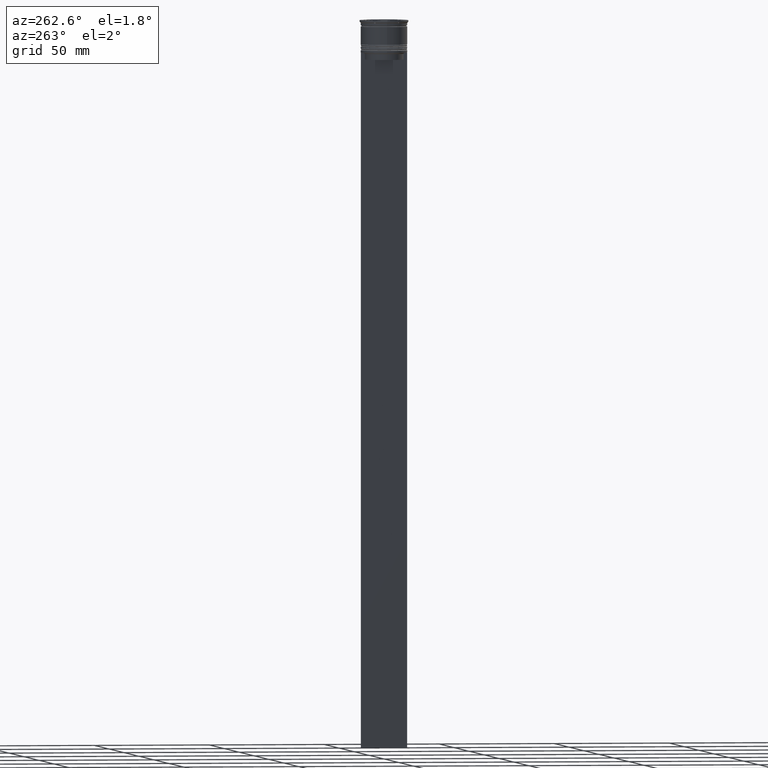
[diagram: clean part render]
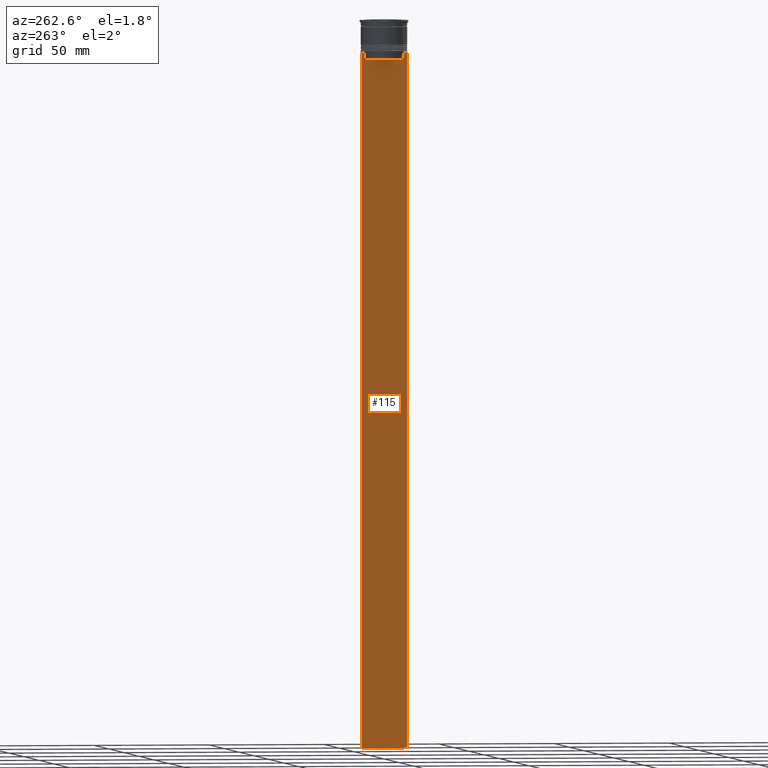
[diagram: same view with one face highlighted and labeled with its STEP entity id]
A machine part, auxiliary view. The second image highlights one B-rep face of the part: STEP entity #115.
In plain terms, the highlighted planar face has unit normal (-1, 0, 0).
Its self-contained STEP definition (entity closure, byte-faithful):
#62 = CARTESIAN_POINT ( 'NONE',  ( -0.5000000000000000000, 8.385105843100616241, 0.000000000000000000 ) ) ;
#115 = ADVANCED_FACE ( 'NONE', ( #799 ), #1029, .T. ) ;
#152 = CARTESIAN_POINT ( 'NONE',  ( -0.5000000000000000000, -8.385105843100616241, 0.000000000000000000 ) ) ;
#170 = VERTEX_POINT ( 'NONE', #833 ) ;
#177 = VECTOR ( 'NONE', #376, 1000.000000000000000 ) ;
#189 = CARTESIAN_POINT ( 'NONE',  ( -0.5000000000000000000, -10.00000000000000178, -14.00000000000000178 ) ) ;
#212 = ORIENTED_EDGE ( 'NONE', *, *, #2210, .F. ) ;
#268 = DIRECTION ( 'NONE',  ( 0.000000000000000000, 0.000000000000000000, -1.000000000000000000 ) ) ;
#284 = VERTEX_POINT ( 'NONE', #1469 ) ;
#327 = ORIENTED_EDGE ( 'NONE', *, *, #1141, .F. ) ;
#353 = LINE ( 'NONE', #152, #678 ) ;
#376 = DIRECTION ( 'NONE',  ( 0.000000000000000000, -1.000000000000000000, 0.000000000000000000 ) ) ;
#379 = LINE ( 'NONE', #2398, #2533 ) ;
#394 = VECTOR ( 'NONE', #1711, 1000.000000000000000 ) ;
#404 = CARTESIAN_POINT ( 'NONE',  ( -0.5000000000000000000, -8.385105843100616241, -14.50000000000000000 ) ) ;
#460 = VERTEX_POINT ( 'NONE', #1512 ) ;
#496 = CARTESIAN_POINT ( 'NONE',  ( -0.5000000000000000000, 9.999999999999998224, 6.024984394500783047 ) ) ;
#510 = CARTESIAN_POINT ( 'NONE',  ( -0.5000000000000000000, 8.385105843100616241, -14.50000000000000000 ) ) ;
#524 = ORIENTED_EDGE ( 'NONE', *, *, #1669, .F. ) ;
#553 = AXIS2_PLACEMENT_3D ( 'NONE', #1884, #2465, #2475 ) ;
#566 = VECTOR ( 'NONE', #268, 1000.000000000000000 ) ;
#576 = LINE ( 'NONE', #791, #1233 ) ;
#587 = VECTOR ( 'NONE', #1082, 1000.000000000000000 ) ;
#651 = DIRECTION ( 'NONE',  ( 0.000000000000000000, -1.000000000000000000, 0.000000000000000000 ) ) ;
#657 = EDGE_CURVE ( 'NONE', #460, #2553, #1820, .T. ) ;
#668 = CARTESIAN_POINT ( 'NONE',  ( -0.5000000000000000000, 8.385105843100616241, -14.50000000000000000 ) ) ;
#678 = VECTOR ( 'NONE', #2003, 1000.000000000000000 ) ;
#711 = CARTESIAN_POINT ( 'NONE',  ( -0.5000000000000000000, 8.885943956609230199, -14.00000000000000178 ) ) ;
#730 = EDGE_CURVE ( 'NONE', #893, #284, #1616, .T. ) ;
#753 = CARTESIAN_POINT ( 'NONE',  ( -0.5000000000000000000, -10.00000000000000178, -14.00000000000000178 ) ) ;
#791 = CARTESIAN_POINT ( 'NONE',  ( -0.5000000000000000000, -10.00000000000000178, -14.00000000000000178 ) ) ;
#799 = FACE_OUTER_BOUND ( 'NONE', #1351, .T. ) ;
#803 = CARTESIAN_POINT ( 'NONE',  ( -0.5000000000000000000, -8.552060194457769882, -14.33334167772667200 ) ) ;
#825 = EDGE_CURVE ( 'NONE', #2401, #1599, #865, .T. ) ;
#833 = CARTESIAN_POINT ( 'NONE',  ( -0.5000000000000000000, -8.385105843100616241, -17.00000000000000000 ) ) ;
#850 = ORIENTED_EDGE ( 'NONE', *, *, #1389, .F. ) ;
#865 = LINE ( 'NONE', #62, #587 ) ;
#879 = LINE ( 'NONE', #2564, #394 ) ;
#893 = VERTEX_POINT ( 'NONE', #2098 ) ;
#952 = VERTEX_POINT ( 'NONE', #1782 ) ;
#977 = VECTOR ( 'NONE', #1593, 1000.000000000000000 ) ;
#1029 = PLANE ( 'NONE',  #553 ) ;
#1040 = ORIENTED_EDGE ( 'NONE', *, *, #1704, .F. ) ;
#1048 = ORIENTED_EDGE ( 'NONE', *, *, #825, .F. ) ;
#1082 = DIRECTION ( 'NONE',  ( 0.000000000000000000, 0.000000000000000000, -1.000000000000000000 ) ) ;
#1118 = VECTOR ( 'NONE', #651, 1000.000000000000000 ) ;
#1141 = EDGE_CURVE ( 'NONE', #952, #2117, #379, .T. ) ;
#1183 = B_SPLINE_CURVE_WITH_KNOTS ( 'NONE', 3,
 ( #711, #2116, #1531, #510 ),
 .UNSPECIFIED., .F., .F.,
 ( 4, 4 ),
 ( 0.01511546479386908018, 0.01582316445439079997 ),
 .UNSPECIFIED. ) ;
#1204 = EDGE_CURVE ( 'NONE', #2553, #952, #2610, .T. ) ;
#1213 = ORIENTED_EDGE ( 'NONE', *, *, #1204, .F. ) ;
#1219 = CARTESIAN_POINT ( 'NONE',  ( -0.5000000000000000000, -8.719005764482790966, -14.16667454151159689 ) ) ;
#1230 = DIRECTION ( 'NONE',  ( 0.000000000000000000, -1.000000000000000000, 0.000000000000000000 ) ) ;
#1233 = VECTOR ( 'NONE', #1993, 1000.000000000000000 ) ;
#1301 = ORIENTED_EDGE ( 'NONE', *, *, #1943, .T. ) ;
#1351 = EDGE_LOOP ( 'NONE', ( #1969, #1360, #524, #1301, #1783, #327, #1213, #1488, #850, #1040, #212, #1048 ) ) ;
#1360 = ORIENTED_EDGE ( 'NONE', *, *, #730, .F. ) ;
#1389 = EDGE_CURVE ( 'NONE', #2113, #460, #1611, .T. ) ;
#1469 = CARTESIAN_POINT ( 'NONE',  ( -0.5000000000000000000, 8.885943956609230199, -14.00000000000000178 ) ) ;
#1488 = ORIENTED_EDGE ( 'NONE', *, *, #657, .F. ) ;
#1512 = CARTESIAN_POINT ( 'NONE',  ( -0.5000000000000000000, -8.885943956609230199, -14.00000000000000178 ) ) ;
#1524 = VERTEX_POINT ( 'NONE', #2121 ) ;
#1531 = CARTESIAN_POINT ( 'NONE',  ( -0.5000000000000000000, 8.552060201981381837, -14.33334167021640226 ) ) ;
#1593 = DIRECTION ( 'NONE',  ( 0.000000000000000000, -1.000000000000000000, 0.000000000000000000 ) ) ;
#1599 = VERTEX_POINT ( 'NONE', #2169 ) ;
#1611 = B_SPLINE_CURVE_WITH_KNOTS ( 'NONE', 3,
 ( #404, #803, #1219, #2479 ),
 .UNSPECIFIED., .F., .F.,
 ( 4, 4 ),
 ( 0.03898465126933132324, 0.03969388910599660342 ),
 .UNSPECIFIED. ) ;
#1616 = LINE ( 'NONE', #189, #177 ) ;
#1639 = VERTEX_POINT ( 'NONE', #2442 ) ;
#1669 = EDGE_CURVE ( 'NONE', #1524, #893, #576, .T. ) ;
#1704 = EDGE_CURVE ( 'NONE', #170, #2113, #353, .T. ) ;
#1711 = DIRECTION ( 'NONE',  ( 0.000000000000000000, 1.000000000000000000, 0.000000000000000000 ) ) ;
#1737 = CARTESIAN_POINT ( 'NONE',  ( -0.5000000000000000000, -8.385105843100616241, -14.50000000000000000 ) ) ;
#1740 = VECTOR ( 'NONE', #1230, 1000.000000000000000 ) ;
#1782 = CARTESIAN_POINT ( 'NONE',  ( -0.5000000000000000000, -10.00000000000000178, -14.00000000000000178 ) ) ;
#1783 = ORIENTED_EDGE ( 'NONE', *, *, #2006, .F. ) ;
#1799 = DIRECTION ( 'NONE',  ( 0.000000000000000000, 0.000000000000000000, -1.000000000000000000 ) ) ;
#1820 = LINE ( 'NONE', #2591, #1118 ) ;
#1877 = CARTESIAN_POINT ( 'NONE',  ( -0.5000000000000000000, 8.400000000000003908, -17.00000000000000000 ) ) ;
#1884 = CARTESIAN_POINT ( 'NONE',  ( -0.5000000000000000000, -10.00000000000000178, 6.024984394500783047 ) ) ;
#1943 = EDGE_CURVE ( 'NONE', #1524, #1639, #2100, .T. ) ;
#1951 = CARTESIAN_POINT ( 'NONE',  ( -0.5000000000000000000, -10.00000000000000178, -314.0000000000000000 ) ) ;
#1969 = ORIENTED_EDGE ( 'NONE', *, *, #1980, .F. ) ;
#1980 = EDGE_CURVE ( 'NONE', #284, #2401, #1183, .T. ) ;
#1993 = DIRECTION ( 'NONE',  ( 0.000000000000000000, -1.000000000000000000, 0.000000000000000000 ) ) ;
#2003 = DIRECTION ( 'NONE',  ( -0.000000000000000000, -0.000000000000000000, 1.000000000000000000 ) ) ;
#2006 = EDGE_CURVE ( 'NONE', #2117, #1639, #879, .T. ) ;
#2098 = CARTESIAN_POINT ( 'NONE',  ( -0.5000000000000000000, 9.887365675446622149, -14.00000000000000178 ) ) ;
#2100 = LINE ( 'NONE', #496, #566 ) ;
#2113 = VERTEX_POINT ( 'NONE', #1737 ) ;
#2116 = CARTESIAN_POINT ( 'NONE',  ( -0.5000000000000000000, 8.719005771582351016, -14.16667453442324742 ) ) ;
#2117 = VERTEX_POINT ( 'NONE', #1951 ) ;
#2121 = CARTESIAN_POINT ( 'NONE',  ( -0.5000000000000000000, 9.999999999999994671, -14.00000000000000178 ) ) ;
#2169 = CARTESIAN_POINT ( 'NONE',  ( -0.5000000000000000000, 8.385105843100616241, -17.00000000000000000 ) ) ;
#2210 = EDGE_CURVE ( 'NONE', #1599, #170, #2468, .T. ) ;
#2265 = CARTESIAN_POINT ( 'NONE',  ( -0.5000000000000000000, -9.887365675446622149, -14.00000000000000178 ) ) ;
#2398 = CARTESIAN_POINT ( 'NONE',  ( -0.5000000000000000000, -10.00000000000000178, 6.024984394500783047 ) ) ;
#2401 = VERTEX_POINT ( 'NONE', #668 ) ;
#2442 = CARTESIAN_POINT ( 'NONE',  ( -0.5000000000000000000, 9.999999999999998224, -314.0000000000000000 ) ) ;
#2465 = DIRECTION ( 'NONE',  ( -1.000000000000000000, 0.000000000000000000, 0.000000000000000000 ) ) ;
#2468 = LINE ( 'NONE', #1877, #1740 ) ;
#2475 = DIRECTION ( 'NONE',  ( 0.000000000000000000, 0.000000000000000000, 1.000000000000000000 ) ) ;
#2479 = CARTESIAN_POINT ( 'NONE',  ( -0.5000000000000000000, -8.885943956609230199, -14.00000000000000178 ) ) ;
#2533 = VECTOR ( 'NONE', #1799, 1000.000000000000000 ) ;
#2553 = VERTEX_POINT ( 'NONE', #2265 ) ;
#2564 = CARTESIAN_POINT ( 'NONE',  ( -0.5000000000000000000, -10.00000000000000178, -314.0000000000000000 ) ) ;
#2591 = CARTESIAN_POINT ( 'NONE',  ( -0.5000000000000000000, -10.00000000000000178, -14.00000000000000178 ) ) ;
#2610 = LINE ( 'NONE', #753, #977 ) ;